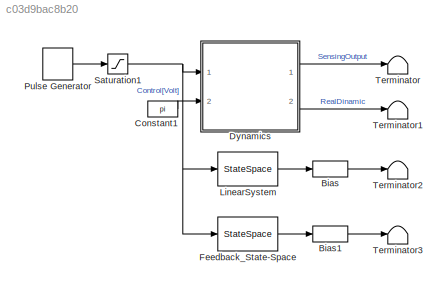
MODEL slx_c03d9bac8b20
KIND model
CONFIG AbsTol = auto
CONFIG FixedStep = 0.01
CONFIG MaxStep = 0.01
CONFIG MinStep = auto
CONFIG RelTol = 1e-3
CONFIG SampleTimeConstraint = Unconstrained
CONFIG Solver = ode5
CONFIG SolverMode = Auto
CONFIG SolverName = ode5
CONFIG StartTime = 0.0
CONFIG StopTime = 20
BLOCK [Bias] Bias
  Bias = [0; pi; 0; 0]
  SaturateOnIntegerOverflow = off
BLOCK [Bias] Bias1
  Bias = [0; pi; 0; 0]
  SaturateOnIntegerOverflow = off
BLOCK [Constant] Constant1
  Value = pi
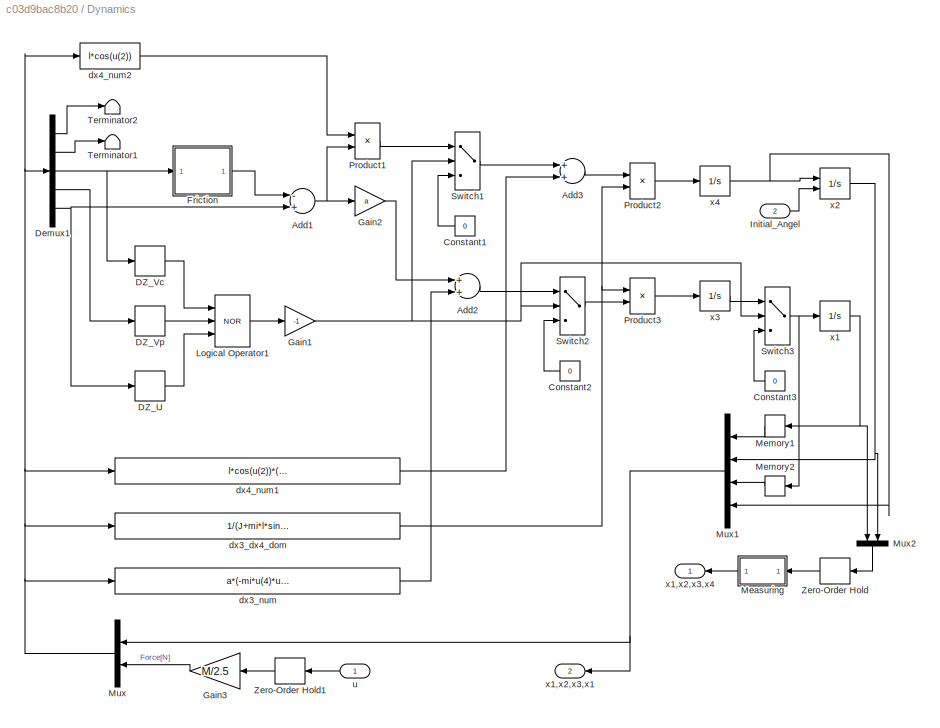
BLOCK [SubSystem] Dynamics
  Ports = [2, 2]
  RequestExecContextInheritance = off
BLOCK [DeadZone] Dynamics/ DZ_Vp
  LowerValue = -3.37476
  UpperValue = 3.37476
BLOCK [Sum] Dynamics/Add1
  InputSameDT = off
  Inputs = -+
  OutDataTypeStr = Inherit: Inherit via internal rule
  Ports = [2, 1]
  SaturateOnIntegerOverflow = off
BLOCK [Sum] Dynamics/Add2
  InputSameDT = off
  OutDataTypeStr = Inherit: Inherit via internal rule
  Ports = [2, 1]
  SaturateOnIntegerOverflow = off
BLOCK [Sum] Dynamics/Add3
  InputSameDT = off
  OutDataTypeStr = Inherit: Inherit via internal rule
  Ports = [2, 1]
  SaturateOnIntegerOverflow = off
BLOCK [Constant] Dynamics/Constant1
  Value = 0
BLOCK [Constant] Dynamics/Constant2
  Value = 0
BLOCK [Constant] Dynamics/Constant3
  Value = 0
BLOCK [DeadZone] Dynamics/DZ_U
  LowerValue = -1.37918
  UpperValue = 1.37918
BLOCK [DeadZone] Dynamics/DZ_Vc
  LowerValue = -0.00793711
  UpperValue = 0.00793711
BLOCK [Demux] Dynamics/Demux1
  DisplayOption = bar
  Outputs = 5
  Ports = [1, 5]
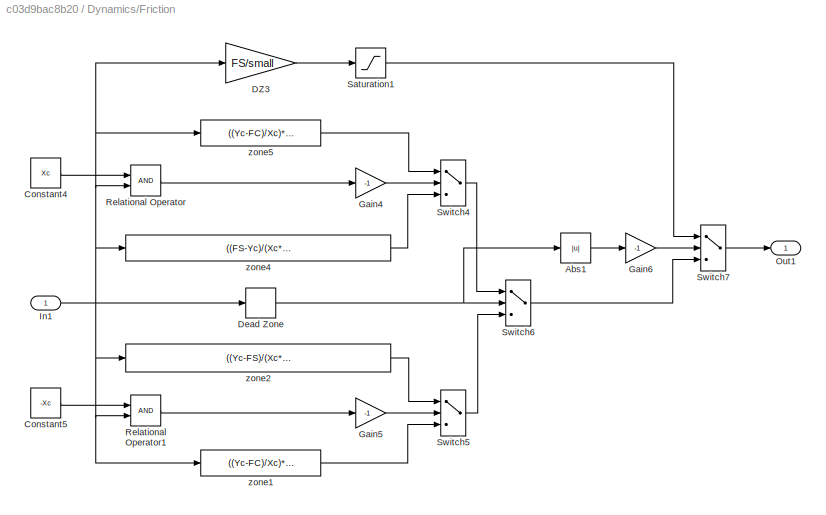
BLOCK [SubSystem] Dynamics/Friction
  Ports = [1, 1]
  RequestExecContextInheritance = off
BLOCK [Abs] Dynamics/Friction/Abs1
  SaturateOnIntegerOverflow = off
BLOCK [Constant] Dynamics/Friction/Constant4
  Value = Xc
BLOCK [Constant] Dynamics/Friction/Constant5
  Value = -Xc
BLOCK [Gain] Dynamics/Friction/DZ3
  Gain = FS/small
  OutDataTypeStr = Inherit: Inherit via internal rule
  ParamDataTypeStr = Inherit: Inherit via internal rule
  SaturateOnIntegerOverflow = off
BLOCK [DeadZone] Dynamics/Friction/Dead Zone
  LowerValue = -DZcv
  UpperValue = DZcv
BLOCK [Gain] Dynamics/Friction/Gain4
  Gain = -1
  OutDataTypeStr = Inherit: Inherit via internal rule
  ParamDataTypeStr = Inherit: Inherit via internal rule
  SaturateOnIntegerOverflow = off
BLOCK [Gain] Dynamics/Friction/Gain5
  Gain = -1
  OutDataTypeStr = Inherit: Inherit via internal rule
  ParamDataTypeStr = Inherit: Inherit via internal rule
  SaturateOnIntegerOverflow = off
BLOCK [Gain] Dynamics/Friction/Gain6
  Gain = -1
  OutDataTypeStr = Inherit: Inherit via internal rule
  ParamDataTypeStr = Inherit: Inherit via internal rule
  SaturateOnIntegerOverflow = off
BLOCK [Inport] Dynamics/Friction/In1
  IconDisplay = Port number
BLOCK [Outport] Dynamics/Friction/Out1
  IconDisplay = Port number
BLOCK [RelationalOperator] Dynamics/Friction/Relational Operator
  InputSameDT = off
  OutDataTypeStr = boolean
  Ports = [2, 1]
BLOCK [RelationalOperator] Dynamics/Friction/Relational Operator1
  InputSameDT = off
  OutDataTypeStr = boolean
  Ports = [2, 1]
BLOCK [Saturate] Dynamics/Friction/Saturation1
  InputPortMap = u0
  LowerLimit = -FS
  Ports = [1, 1]
  UpperLimit = FS
BLOCK [Switch] Dynamics/Friction/Switch4
  InputSameDT = off
  SaturateOnIntegerOverflow = off
BLOCK [Switch] Dynamics/Friction/Switch5
  InputSameDT = off
  SaturateOnIntegerOverflow = off
BLOCK [Switch] Dynamics/Friction/Switch6
  InputSameDT = off
  SaturateOnIntegerOverflow = off
BLOCK [Switch] Dynamics/Friction/Switch7
  InputSameDT = off
  SaturateOnIntegerOverflow = off
BLOCK [Fcn] Dynamics/Friction/zone1
  Expr = ((Yc-FC)/Xc)*u(1)-FC
BLOCK [Fcn] Dynamics/Friction/zone2
  Expr = ((Yc-FS)/(Xc*Xc))*(u(1)*u(1))+((2*(Yc-FS))/Xc)*u(1)-FS
BLOCK [Fcn] Dynamics/Friction/zone4
  Expr = ((FS-Yc)/(Xc*Xc))*(u(1)*u(1))-((2*(FS-Yc))/Xc)*u(1)+FS
BLOCK [Fcn] Dynamics/Friction/zone5
  Expr = ((Yc-FC)/Xc)*u(1)+FC
BLOCK [Gain] Dynamics/Gain1
  Gain = -1
  OutDataTypeStr = Inherit: Inherit via internal rule
  ParamDataTypeStr = Inherit: Inherit via internal rule
  SaturateOnIntegerOverflow = off
BLOCK [Gain] Dynamics/Gain2
  Gain = a
  OutDataTypeStr = Inherit: Inherit via internal rule
  ParamDataTypeStr = Inherit: Inherit via internal rule
  SaturateOnIntegerOverflow = off
BLOCK [Gain] Dynamics/Gain3
  Gain = M/2.5
  OutDataTypeStr = Inherit: Inherit via internal rule
  ParamDataTypeStr = Inherit: Inherit via internal rule
  SaturateOnIntegerOverflow = off
BLOCK [Inport] Dynamics/Initial_Angel
  IconDisplay = Port number
  Port = 2
BLOCK [Logic] Dynamics/Logical Operator1
  AllPortsSameDT = off
  Inputs = 3
  Operator = NOR
  OutDataTypeStr = boolean
  Ports = [3, 1]
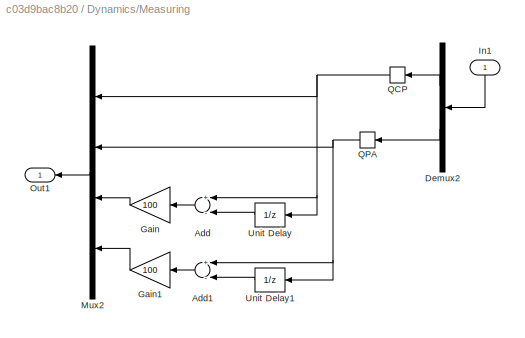
BLOCK [SubSystem] Dynamics/Measuring
  Ports = [1, 1]
  RequestExecContextInheritance = off
BLOCK [Sum] Dynamics/Measuring/Add
  InputSameDT = off
  Inputs = +-
  OutDataTypeStr = Inherit: Inherit via internal rule
  Ports = [2, 1]
  SaturateOnIntegerOverflow = off
BLOCK [Sum] Dynamics/Measuring/Add1
  InputSameDT = off
  Inputs = +-
  OutDataTypeStr = Inherit: Inherit via internal rule
  Ports = [2, 1]
  SaturateOnIntegerOverflow = off
BLOCK [Demux] Dynamics/Measuring/Demux2
  DisplayOption = bar
  Outputs = 2
  Ports = [1, 2]
BLOCK [Gain] Dynamics/Measuring/Gain
  Gain = 100
  OutDataTypeStr = Inherit: Inherit via internal rule
  ParamDataTypeStr = Inherit: Inherit via internal rule
  SaturateOnIntegerOverflow = off
BLOCK [Gain] Dynamics/Measuring/Gain1
  Gain = 100
  OutDataTypeStr = Inherit: Inherit via internal rule
  ParamDataTypeStr = Inherit: Inherit via internal rule
  SaturateOnIntegerOverflow = off
BLOCK [Inport] Dynamics/Measuring/In1
  IconDisplay = Port number
BLOCK [Mux] Dynamics/Measuring/Mux2
  DisplayOption = bar
  Ports = [4, 1]
BLOCK [Outport] Dynamics/Measuring/Out1
  IconDisplay = Port number
BLOCK [Quantizer] Dynamics/Measuring/QCP
  QuantizationInterval = 0.156/2048
BLOCK [Quantizer] Dynamics/Measuring/QPA
  QuantizationInterval = (2*pi)/2048
BLOCK [UnitDelay] Dynamics/Measuring/Unit Delay
  InputProcessing = Elements as channels (sample based)
  SampleTime = -1
BLOCK [UnitDelay] Dynamics/Measuring/Unit Delay1
  InputProcessing = Elements as channels (sample based)
  SampleTime = -1
BLOCK [Memory] Dynamics/Memory1
BLOCK [Memory] Dynamics/Memory2
BLOCK [Mux] Dynamics/Mux
  DisplayOption = bar
  Inputs = 2
  Ports = [2, 1]
BLOCK [Mux] Dynamics/Mux1
  DisplayOption = bar
  Ports = [4, 1]
BLOCK [Mux] Dynamics/Mux2
  DisplayOption = bar
  Inputs = 2
  Ports = [2, 1]
BLOCK [Product] Dynamics/Product1
  InputSameDT = off
  OutDataTypeStr = Inherit: Inherit via internal rule
  Ports = [2, 1]
  RndMeth = Floor
  SaturateOnIntegerOverflow = off
BLOCK [Product] Dynamics/Product2
  InputSameDT = off
  OutDataTypeStr = Inherit: Inherit via internal rule
  Ports = [2, 1]
  RndMeth = Floor
  SaturateOnIntegerOverflow = off
BLOCK [Product] Dynamics/Product3
  InputSameDT = off
  OutDataTypeStr = Inherit: Inherit via internal rule
  Ports = [2, 1]
  RndMeth = Floor
  SaturateOnIntegerOverflow = off
BLOCK [Switch] Dynamics/Switch1
  InputSameDT = off
  SaturateOnIntegerOverflow = off
BLOCK [Switch] Dynamics/Switch2
  InputSameDT = off
  SaturateOnIntegerOverflow = off
BLOCK [Switch] Dynamics/Switch3
  InputSameDT = off
  SaturateOnIntegerOverflow = off
BLOCK [Terminator] Dynamics/Terminator1
BLOCK [Terminator] Dynamics/Terminator2
BLOCK [ZeroOrderHold] Dynamics/Zero-Order Hold
  SampleTime = 0.01
BLOCK [ZeroOrderHold] Dynamics/Zero-Order Hold1
  SampleTime = 0.01
BLOCK [Fcn] Dynamics/dx3_dx4_dom
  Expr = 1/(J+mi*l*sin(u(2))*sin(u(2)))
BLOCK [Fcn] Dynamics/dx3_num
  Expr = a*(-mi*u(4)*u(4)*sin(u(2)))+l*cos(u(2))*(mi*g*sin(u(2))-fp*u(4))
BLOCK [Fcn] Dynamics/dx4_num1
  Expr = l*cos(u(2))*(-mi*u(4)*u(4)*sin(u(2)))+mi*g*sin(u(2))-fp*u(4)
BLOCK [Fcn] Dynamics/dx4_num2
  Expr = l*cos(u(2))
BLOCK [Inport] Dynamics/u
  IconDisplay = Port number
BLOCK [Integrator] Dynamics/x1
  Ports = [1, 1]
BLOCK [Outport] Dynamics/x1,x2,x3,x1
  IconDisplay = Port number
  Port = 2
BLOCK [Outport] Dynamics/x1,x2,x3,x4
  IconDisplay = Port number
BLOCK [Integrator] Dynamics/x2
  InitialCondition = pi/2
  InitialConditionSource = external
  Ports = [2, 1]
BLOCK [Integrator] Dynamics/x3
  Ports = [1, 1]
BLOCK [Integrator] Dynamics/x4
  Ports = [1, 1]
BLOCK [StateSpace] Feedback_State-Space
  A = As
  B = Bs
  C = Cs
  D = Ds
  Ports = [1, 1]
  X0 = 0
BLOCK [StateSpace] LinearSystem
  A = A
  B = B
  C = C
  D = D
  Ports = [1, 1]
  X0 = [0; 0; 0; 0]
BLOCK [DiscretePulseGenerator] Pulse Generator
  Period = 10
  Ports = [0, 1]
  PulseType = Time based
  PulseWidth = 5
BLOCK [Saturate] Saturation1
  InputPortMap = u0
  LowerLimit = -2.5
  Ports = [1, 1]
  UpperLimit = 2.5
BLOCK [Terminator] Terminator
BLOCK [Terminator] Terminator1
BLOCK [Terminator] Terminator2
BLOCK [Terminator] Terminator3
LINE Bias1:1 -> Terminator3:1
LINE Bias:1 -> Terminator2:1
LINE Constant1:1 -> Dynamics:2
LINE Dynamics/ DZ_Vp:1 -> Dynamics/Logical Operator1:2
NET Dynamics/Add1:1 -> Dynamics/Gain2:1, Dynamics/Product1:2
LINE Dynamics/Add2:1 -> Dynamics/Switch2:1
LINE Dynamics/Add3:1 -> Dynamics/Product2:1
LINE Dynamics/Constant1:1 -> Dynamics/Switch1:3
LINE Dynamics/Constant2:1 -> Dynamics/Switch2:3
LINE Dynamics/Constant3:1 -> Dynamics/Switch3:3
LINE Dynamics/DZ_U:1 -> Dynamics/Logical Operator1:3
LINE Dynamics/DZ_Vc:1 -> Dynamics/Logical Operator1:1
LINE Dynamics/Demux1:1 -> Dynamics/Terminator2:1
LINE Dynamics/Demux1:2 -> Dynamics/Terminator1:1
NET Dynamics/Demux1:3 -> Dynamics/DZ_Vc:1, Dynamics/Friction:1
LINE Dynamics/Demux1:4 -> Dynamics/ DZ_Vp:1
NET Dynamics/Demux1:5 -> Dynamics/Add1:2, Dynamics/DZ_U:1
LINE Dynamics/Friction/Abs1:1 -> Dynamics/Friction/Gain6:1
LINE Dynamics/Friction/Constant4:1 -> Dynamics/Friction/Relational Operator:1
LINE Dynamics/Friction/Constant5:1 -> Dynamics/Friction/Relational Operator1:1
LINE Dynamics/Friction/DZ3:1 -> Dynamics/Friction/Saturation1:1
NET Dynamics/Friction/Dead Zone:1 -> Dynamics/Friction/Abs1:1, Dynamics/Friction/Switch6:2
LINE Dynamics/Friction/Gain4:1 -> Dynamics/Friction/Switch4:2
LINE Dynamics/Friction/Gain5:1 -> Dynamics/Friction/Switch5:2
LINE Dynamics/Friction/Gain6:1 -> Dynamics/Friction/Switch7:2
NET Dynamics/Friction/In1:1 -> Dynamics/Friction/DZ3:1, Dynamics/Friction/Dead Zone:1, Dynamics/Friction/Relational Operator1:2, Dynamics/Friction/Relational Operator:2, Dynamics/Friction/zone1:1, Dynamics/Friction/zone2:1, Dynamics/Friction/zone4:1, Dynamics/Friction/zone5:1
LINE Dynamics/Friction/Relational Operator1:1 -> Dynamics/Friction/Gain5:1
LINE Dynamics/Friction/Relational Operator:1 -> Dynamics/Friction/Gain4:1
LINE Dynamics/Friction/Saturation1:1 -> Dynamics/Friction/Switch7:1
LINE Dynamics/Friction/Switch4:1 -> Dynamics/Friction/Switch6:1
LINE Dynamics/Friction/Switch5:1 -> Dynamics/Friction/Switch6:3
LINE Dynamics/Friction/Switch6:1 -> Dynamics/Friction/Switch7:3
LINE Dynamics/Friction/Switch7:1 -> Dynamics/Friction/Out1:1
LINE Dynamics/Friction/zone1:1 -> Dynamics/Friction/Switch5:3
LINE Dynamics/Friction/zone2:1 -> Dynamics/Friction/Switch5:1
LINE Dynamics/Friction/zone4:1 -> Dynamics/Friction/Switch4:3
LINE Dynamics/Friction/zone5:1 -> Dynamics/Friction/Switch4:1
LINE Dynamics/Friction:1 -> Dynamics/Add1:1
NET Dynamics/Gain1:1 -> Dynamics/Switch1:2, Dynamics/Switch2:2, Dynamics/Switch3:2
LINE Dynamics/Gain2:1 -> Dynamics/Add2:1
LINE Dynamics/Gain3:1 -> Dynamics/Mux:2
LINE Dynamics/Initial_Angel:1 -> Dynamics/x2:2
LINE Dynamics/Logical Operator1:1 -> Dynamics/Gain1:1
LINE Dynamics/Measuring/Add1:1 -> Dynamics/Measuring/Gain1:1
LINE Dynamics/Measuring/Add:1 -> Dynamics/Measuring/Gain:1
LINE Dynamics/Measuring/Demux2:1 -> Dynamics/Measuring/QCP:1
LINE Dynamics/Measuring/Demux2:2 -> Dynamics/Measuring/QPA:1
LINE Dynamics/Measuring/Gain1:1 -> Dynamics/Measuring/Mux2:4
LINE Dynamics/Measuring/Gain:1 -> Dynamics/Measuring/Mux2:3
LINE Dynamics/Measuring/In1:1 -> Dynamics/Measuring/Demux2:1
LINE Dynamics/Measuring/Mux2:1 -> Dynamics/Measuring/Out1:1
NET Dynamics/Measuring/QCP:1 -> Dynamics/Measuring/Add:1, Dynamics/Measuring/Mux2:1, Dynamics/Measuring/Unit Delay:1
NET Dynamics/Measuring/QPA:1 -> Dynamics/Measuring/Add1:1, Dynamics/Measuring/Mux2:2, Dynamics/Measuring/Unit Delay1:1
LINE Dynamics/Measuring/Unit Delay1:1 -> Dynamics/Measuring/Add1:2
LINE Dynamics/Measuring/Unit Delay:1 -> Dynamics/Measuring/Add:2
LINE Dynamics/Measuring:1 -> Dynamics/x1,x2,x3,x4:1
LINE Dynamics/Memory1:1 -> Dynamics/Mux1:1
LINE Dynamics/Memory2:1 -> Dynamics/Mux1:3
NET Dynamics/Mux1:1 -> Dynamics/Mux:1, Dynamics/x1,x2,x3,x1:1
LINE Dynamics/Mux2:1 -> Dynamics/Zero-Order Hold:1
NET Dynamics/Mux:1 -> Dynamics/Demux1:1, Dynamics/dx3_dx4_dom:1, Dynamics/dx3_num:1, Dynamics/dx4_num1:1, Dynamics/dx4_num2:1
LINE Dynamics/Product1:1 -> Dynamics/Switch1:1
LINE Dynamics/Product2:1 -> Dynamics/x4:1
LINE Dynamics/Product3:1 -> Dynamics/x3:1
LINE Dynamics/Switch1:1 -> Dynamics/Add3:1
LINE Dynamics/Switch2:1 -> Dynamics/Product3:2
NET Dynamics/Switch3:1 -> Dynamics/Memory2:1, Dynamics/x1:1
LINE Dynamics/Zero-Order Hold1:1 -> Dynamics/Gain3:1
LINE Dynamics/Zero-Order Hold:1 -> Dynamics/Measuring:1
NET Dynamics/dx3_dx4_dom:1 -> Dynamics/Product2:2, Dynamics/Product3:1
LINE Dynamics/dx3_num:1 -> Dynamics/Add2:2
LINE Dynamics/dx4_num1:1 -> Dynamics/Add3:2
LINE Dynamics/dx4_num2:1 -> Dynamics/Product1:1
LINE Dynamics/u:1 -> Dynamics/Zero-Order Hold1:1
NET Dynamics/x1:1 -> Dynamics/Memory1:1, Dynamics/Mux2:1
NET Dynamics/x2:1 -> Dynamics/Mux1:2, Dynamics/Mux2:2
LINE Dynamics/x3:1 -> Dynamics/Switch3:1
NET Dynamics/x4:1 -> Dynamics/Mux1:4, Dynamics/x2:1
LINE Dynamics:1 -> Terminator:1
LINE Dynamics:2 -> Terminator1:1
LINE Feedback_State-Space:1 -> Bias1:1
LINE LinearSystem:1 -> Bias:1
LINE Pulse Generator:1 -> Saturation1:1
NET Saturation1:1 -> Dynamics:1, Feedback_State-Space:1, LinearSystem:1
note: NET lines group one-source signal fan-out (src -> all destinations, sorted); 1:1 wires keep LINE
